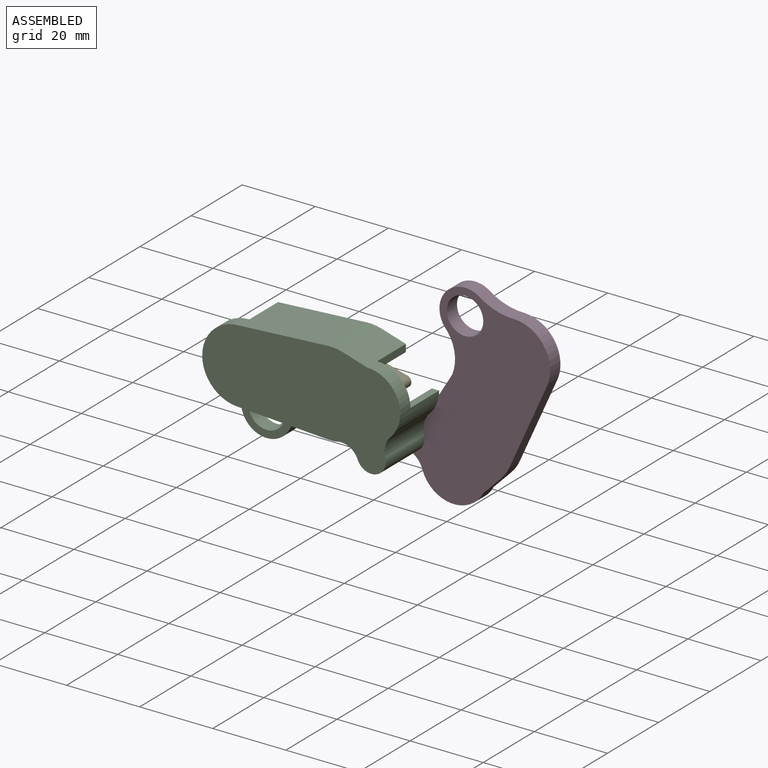
[diagram: assembled view]
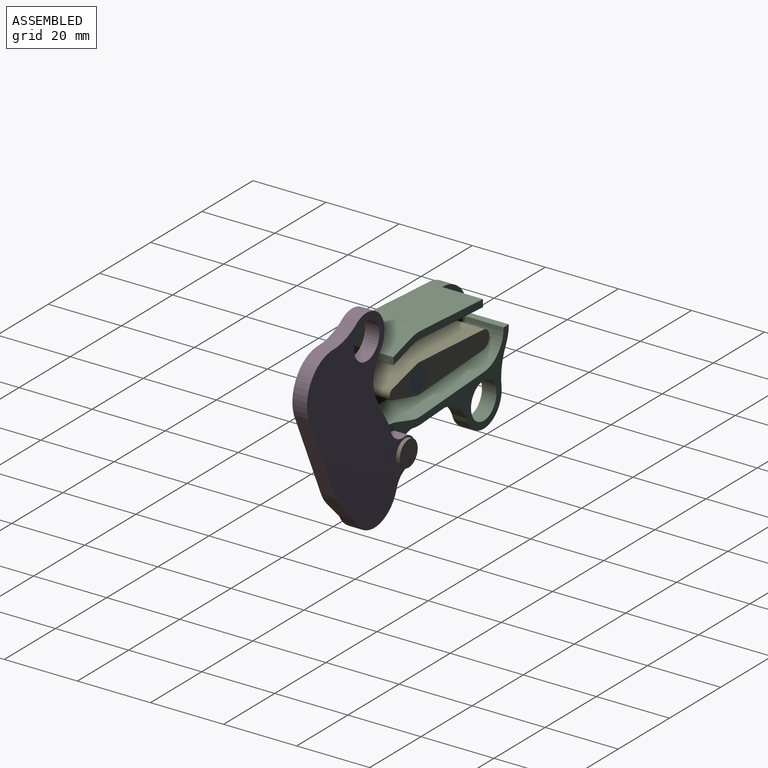
[diagram: assembled view, second angle]
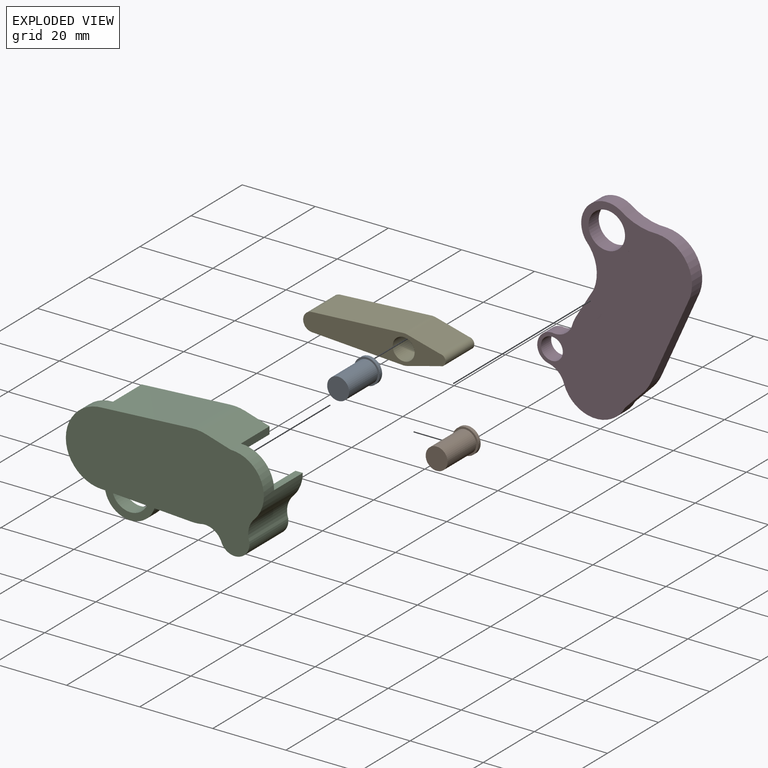
[diagram: exploded view]
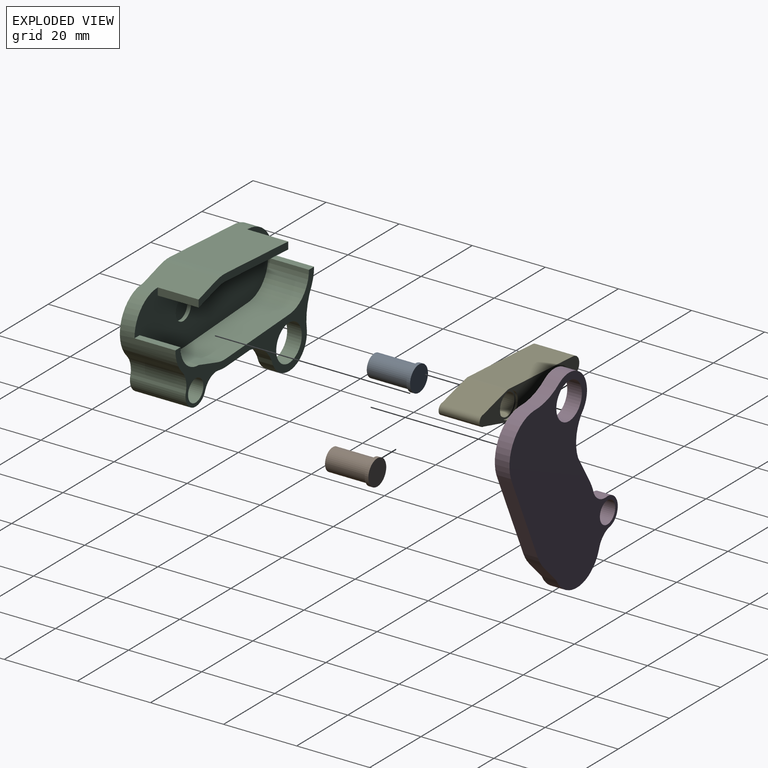
[diagram: exploded view, second angle]
ASSEMBLY  parts=5 mates=4
PART A: 5 faces, bbox 7x12.2x7 mm
  f0: cylinder r=3mm len=11.2mm, axis (0,1,0), area 211.1mm2, adj f1,f3
  f1: plane 6x6mm, normal (0,1,0), area 28.3mm2, adj f0
  f2: cylinder r=3.5mm len=7mm, axis (0,1,0), area 22mm2, adj f3,f4
  f3: plane 7x7mm, normal (0,1,0), area 10.2mm2, adj f0,f2
  f4: plane 7x7mm, normal (0,-1,0), area 38.5mm2, adj f2
PART B: same geometry as A
PART C: 36 faces, bbox 54.2x15.2x33.7 mm
  f0: cylinder r=3mm len=6mm, axis (0,1,0), area 18.8mm2, adj f15,f32
  f1: cylinder r=10.1mm len=15.2mm, axis (0,1,0), area 128.6mm2, adj f2,f13,f14,f15,f18,f24
  f2: cylinder r=16.37mm len=15.2mm, axis (0,1,0), area 56.5mm2, adj f1,f3,f14,f24,f33,f35
  f3: cylinder r=10.1mm len=11.2mm, axis (0,1,0), area 112.6mm2, adj f2,f4,f14,f35
  f4: cylinder r=5mm len=15.2mm, axis (0,1,0), area 130.2mm2, adj f3,f5,f14,f24,f35
  f5: plane 24.3x15.2mm, normal (-0.06,0,-1), area 309.6mm2, adj f4,f6,f14,f24,f34,f35
  f6: cylinder r=11.6mm len=15.2mm, axis (0,1,0), area 48.8mm2, adj f5,f7,f14,f24
  f7: cylinder r=4.9mm len=15.2mm, axis (0,1,0), area 101.2mm2, adj f6,f8,f14,f24
  f8: cylinder r=4mm len=15.2mm, axis (0,1,0), area 171.6mm2, adj f7,f9,f14,f24
  f9: cylinder r=5.75mm len=15.2mm, axis (0,1,0), area 99.7mm2, adj f8,f10,f14,f24
  f10: cylinder r=9.1mm len=15.38mm, axis (0,1,0), area 162.5mm2, adj f9,f11,f14,f15,f19,f24
  f11: plane 15.2x6.65mm, normal (0.29,0,0.96), area 105.6mm2, adj f10,f12,f14,f30,f31
  f12: cylinder r=11.6mm len=15.2mm, axis (0,1,0), area 62.4mm2, adj f11,f13,f14,f31
  f13: plane 24.3x15.2mm, normal (-0.06,0,1), area 370mm2, adj f1,f12,f14,f26,f31
  f14: plane 54.2x28.53mm, normal (0,-1,0), area 1107mm2, adj f1,f2,f3,f4,f5,f6,f7,f8
  f15: plane 54.2x19.7mm, normal (0,1,0), area 821.2mm2, adj f0,f1,f10,f16,f17,f18,f19,f20
  f16: plane 24.42x11.2mm, normal (0.06,0,1), area 274mm2, adj f15,f17,f22,f24
  f17: cylinder r=8.1mm len=11.2mm, axis (0,1,0), area 142.5mm2, adj f15,f16,f18,f24
  f18: plane 11.2x2mm, normal (0,0,1), area 22.4mm2, adj f1,f15,f17,f24
  f19: plane 11.2x2mm, normal (0,0,1), area 22.4mm2, adj f10,f15,f20,f24
  f20: cylinder r=7.1mm len=11.2mm, axis (0,1,0), area 124.9mm2, adj f15,f19,f21,f24
  f21: plane 11.2x7.33mm, normal (-0.28,0,0.96), area 85.5mm2, adj f15,f20,f22,f24
  f22: cylinder r=9.6mm len=11.2mm, axis (0,1,0), area 36.8mm2, adj f15,f16,f21,f24
  f23: cylinder r=3mm len=11.2mm, axis (0,1,0), area 211.1mm2, adj f24,f25
  f24: plane 54.2x22.09mm, normal (0,1,0), area 250.1mm2, adj f1,f2,f4,f5,f6,f7,f8,f9
  f25: plane 6x6mm, normal (0,1,0), area 28.3mm2, adj f23
  f26: plane 11.2x2mm, normal (-1,0,0), area 22.4mm2, adj f13,f15,f27,f31
  f27: plane 24.42x11.2mm, normal (0.06,0,-1), area 274mm2, adj f15,f26,f28,f31
  f28: cylinder r=9.6mm len=11.2mm, axis (0,1,0), area 36.8mm2, adj f15,f27,f29,f31
  f29: plane 11.2x7.33mm, normal (-0.28,0,-0.96), area 85.5mm2, adj f15,f28,f30,f31
  f30: plane 11.2x2mm, normal (1,0,0), area 22.4mm2, adj f11,f15,f29,f31
  f31: plane 35x4.5mm, normal (0,1,0), area 70.4mm2, adj f11,f12,f13,f26,f27,f28,f29,f30
  f32: plane 6x6mm, normal (0,1,0), area 28.3mm2, adj f0
  f33: cylinder r=7mm len=13.24mm, axis (0,1,0), area 76mm2, adj f2,f24,f34,f35
  f34: cylinder r=10.67mm len=9.12mm, axis (0,1,0), area 49.3mm2, adj f5,f24,f33,f35
  f35: plane 23.75x16.94mm, normal (0,-1,0), area 91.2mm2, adj f2,f3,f4,f5,f33,f34
PART D: 22 faces, bbox 54.2x4x33.7 mm
  f0: cylinder r=8.1mm len=4mm, axis (0,1,0), area 1.5mm2, adj f1,f16,f20,f21
  f1: cylinder r=7mm len=4mm, axis (0,1,0), area 2.9mm2, adj f0,f16,f20,f21
  f2: plane 4x0.12mm, normal (-0.02,0,-1), area 0.5mm2, adj f17,f20,f21
  f3: plane 24.3x4mm, normal (-0.06,0,1), area 97.4mm2, adj f4,f18,f20,f21
  f4: cylinder r=10.1mm len=14.26mm, axis (0,1,0), area 80.6mm2, adj f3,f5,f20,f21
  f5: cylinder r=16.37mm len=10.63mm, axis (0,1,0), area 44mm2, adj f4,f6,f20,f21
  f6: cylinder r=7mm len=13.24mm, axis (0,1,0), area 76mm2, adj f5,f7,f20,f21
  f7: cylinder r=10.67mm len=9.12mm, axis (0,1,0), area 49.3mm2, adj f6,f8,f20,f21
  f8: plane 9.24x4mm, normal (-0.06,0,-1), area 37mm2, adj f7,f9,f20,f21
  f9: cylinder r=11.6mm len=4mm, axis (0,1,0), area 12.8mm2, adj f8,f10,f20,f21
  f10: cylinder r=4.9mm len=5.11mm, axis (0,1,0), area 26.6mm2, adj f9,f11,f20,f21
  f11: cylinder r=4mm len=7.56mm, axis (0,1,0), area 45.2mm2, adj f10,f12,f20,f21
  f12: cylinder r=5.75mm len=6.03mm, axis (0,1,0), area 26.2mm2, adj f11,f13,f20,f21
  f13: cylinder r=9.1mm len=15.38mm, axis (0,1,0), area 84.9mm2, adj f12,f14,f20,f21
  f14: plane 6.65x4mm, normal (0.29,0,0.96), area 27.8mm2, adj f13,f18,f20,f21
  f15: cylinder r=5mm len=10mm, axis (0,1,0), area 125.7mm2, adj f20,f21
  f16: plane 4x0.35mm, normal (0.06,0,1), area 1.4mm2, adj f0,f1,f20,f21
  f17: cylinder r=3mm len=4mm, axis (0,1,0), area 0.5mm2, adj f2,f20,f21
  f18: cylinder r=11.6mm len=4.05mm, axis (0,1,0), area 16.4mm2, adj f3,f14,f20,f21
  f19: cylinder r=3mm len=6mm, axis (0,1,0), area 75.4mm2, adj f20,f21
  f20: plane 54.2x33.69mm, normal (0,-1,0), area 1169.9mm2, adj f0,f1,f2,f3,f4,f5,f6,f7
  f21: plane 54.2x33.69mm, normal (0,1,0), area 1169.9mm2, adj f0,f1,f2,f3,f4,f5,f6,f7
PART E: 13 faces, bbox 39x11.2x8 mm
  f0: plane 25x11.2mm, normal (-0.06,0,-1), area 280.5mm2, adj f1,f8,f9,f10
  f1: cylinder r=4mm len=11.2mm, axis (0,1,0), area 11.5mm2, adj f0,f2,f9,f10
  f2: plane 11.2x8.98mm, normal (0.25,0,-0.97), area 104mm2, adj f1,f3,f9,f10
  f3: cylinder r=1.5mm len=11.2mm, axis (0,1,0), area 52.8mm2, adj f2,f4,f9,f10
  f4: plane 11.2x8.98mm, normal (0.25,0,0.97), area 104mm2, adj f3,f5,f9,f10
  f5: cylinder r=4mm len=11.2mm, axis (0,1,0), area 14.2mm2, adj f4,f6,f9,f10
  f6: plane 24.76x11.2mm, normal (-0.06,0,1), area 277.8mm2, adj f5,f8,f9,f10
  f7: cylinder r=3.5mm len=7mm, axis (0,1,0), area 13.2mm2, adj f9,f12
  f8: cylinder r=2.5mm len=11.2mm, axis (0,1,0), area 88mm2, adj f0,f6,f9,f10
  f9: plane 39x8mm, normal (0,-1,0), area 193.7mm2, adj f0,f1,f2,f3,f4,f5,f6,f7
  f10: plane 39x8mm, normal (0,1,0), area 203.9mm2, adj f0,f1,f2,f3,f4,f5,f6,f8
  f11: cylinder r=3mm len=10.6mm, axis (0,1,0), area 199.8mm2, adj f10,f12
  f12: plane 7x7mm, normal (0,-1,0), area 10.2mm2, adj f7,f11
PLACE A rot(axis=(0,0,-1),180deg) t=(-25.23,-0.29,4.84)mm
PLACE B rot(axis=(1,0,0),180deg) t=(-14.08,4.71,-8.09)mm
PLACE C t=(-88.73,9.81,4.84)mm
PLACE D rot(axis=(0,1,0),117.7deg) t=(2.55,9.81,-4.22)mm
PLACE E rot(axis=(-1,0,0),180deg) t=(-25.23,0.21,4.84)mm
MATE revolute D.f11 <-> C.f8  axis (0,-1,0) through (-14.08,5.81,-8.09)mm
MATE fastened A.f0 <-> C.f0  axis (0,-1,0) through (-25.23,-6.39,4.84)mm
MATE revolute A.f2 <-> E.f7  axis (0,1,0) through (-25.23,5.81,4.84)mm
MATE revolute B.f0 <-> D.f11  axis (0,-1,0) through (-14.08,9.81,-8.09)mm
